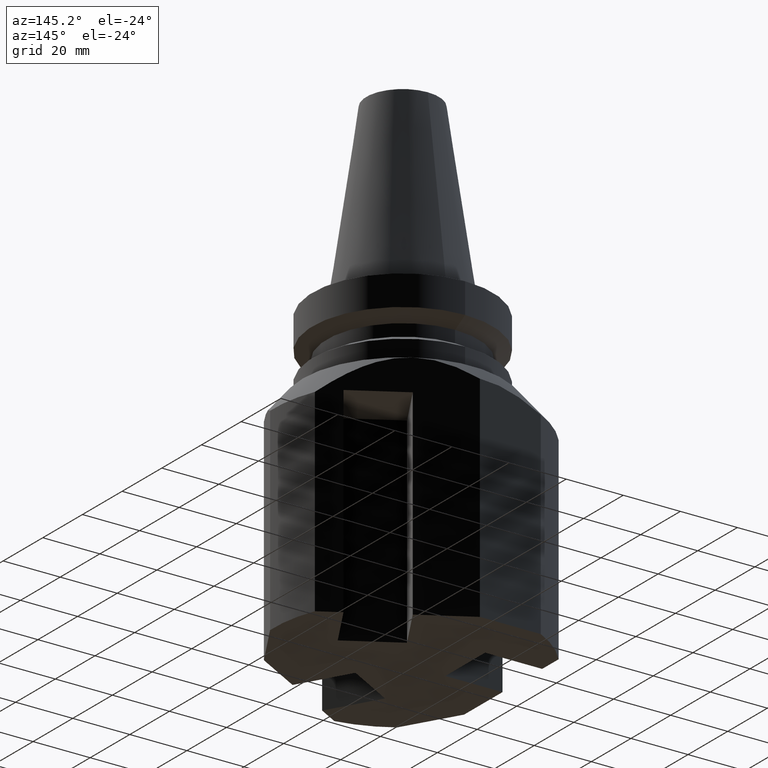
[diagram: clean part render]
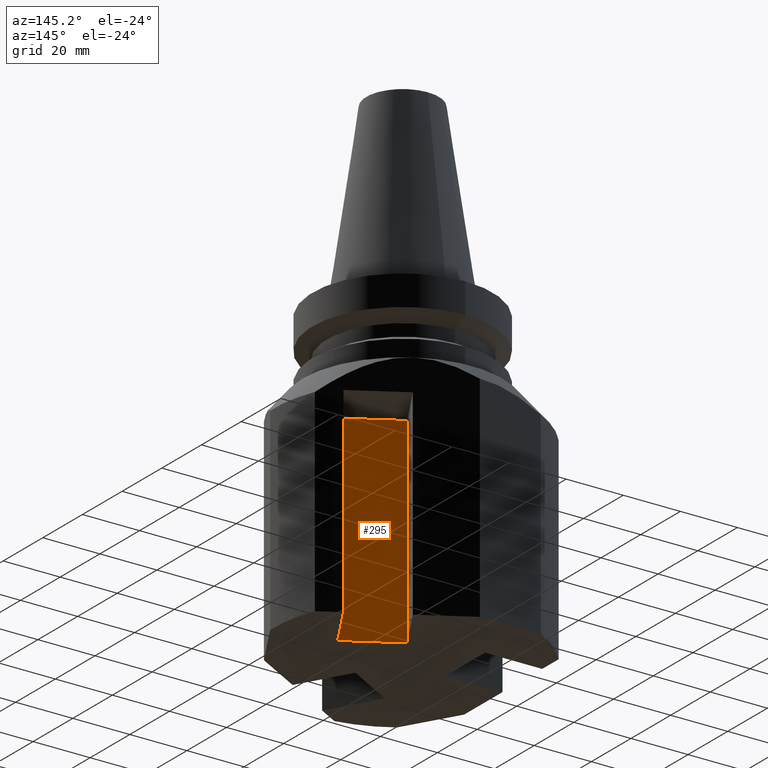
[diagram: same view with one face highlighted and labeled with its STEP entity id]
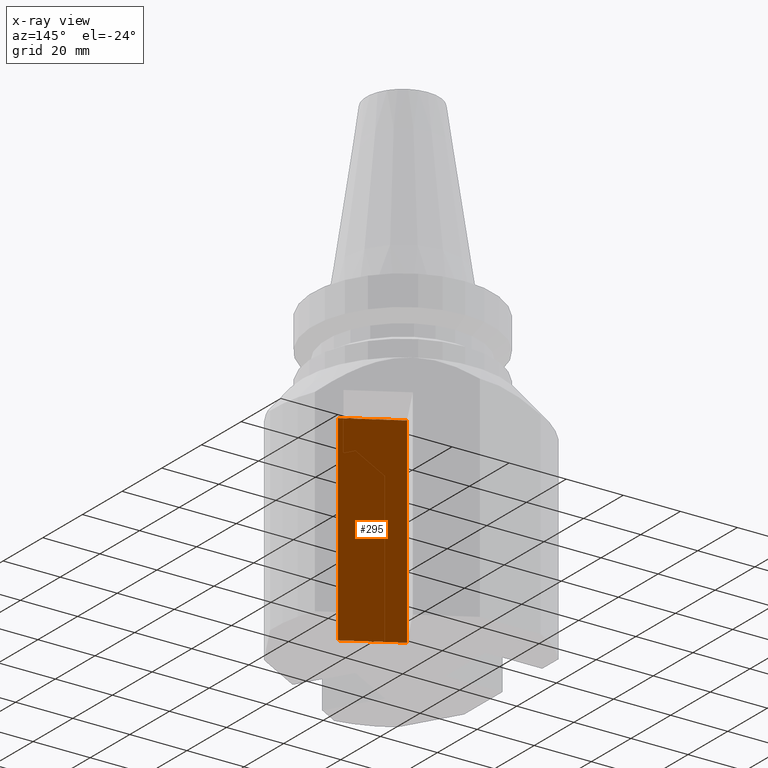
[diagram: x-ray of the same camera — body ghosted, the highlighted face saturated]
A machine part, auxiliary view. The second image highlights one B-rep face of the part: STEP entity #295.
The next image is the same camera in x-ray: the body ghosted, the highlighted face saturated — about 0% of this face is hidden behind the body in this view.
In plain terms, the highlighted planar face has unit normal (-0.5, -0.866, 0).
Its self-contained STEP definition (entity closure, byte-faithful):
#211=EDGE_CURVE('Unnamed[1]',#455,#479,#542,.T.);
#217=EDGE_CURVE('Unnamed[1]',#550,#455,#551,.T.);
#247=EDGE_CURVE('Unnamed[1]',#593,#479,#594,.T.);
#295=ADVANCED_FACE('Unnamed[1]',(#657),#658,.F.);
#402=EDGE_CURVE('Unnamed[1]',#593,#550,#787,.T.);
#455=VERTEX_POINT('',#853);
#479=VERTEX_POINT('',#886);
#542=LINE('',#1001,#1002);
#550=VERTEX_POINT('',#1013);
#551=LINE('',#1014,#1015);
#593=VERTEX_POINT('',#1094);
#594=LINE('',#1095,#1096);
#657=FACE_OUTER_BOUND('',#1194,.T.);
#658=PLANE('',#1195);
#787=LINE('',#1410,#1411);
#853=CARTESIAN_POINT('',(24.8205080756887,2.99038105676606,-39.9999999999998));
#886=CARTESIAN_POINT('',(7.50000000000011,12.9903810567661,-39.9999999999998));
#1001=CARTESIAN_POINT('',(24.8205080756887,2.99038105676606,-39.9999999999998));
#1002=VECTOR('',#1516,1.0);
#1013=CARTESIAN_POINT('',(24.8205080756887,2.99038105676605,-110.0));
#1014=CARTESIAN_POINT('',(24.8205080756887,2.99038105676603,-279.0));
#1015=VECTOR('',#1523,1.0);
#1094=CARTESIAN_POINT('',(7.50000000000011,12.9903810567661,-110.0));
#1095=CARTESIAN_POINT('',(7.5000000000001,12.9903810567661,-279.0));
#1096=VECTOR('',#1558,1.0);
#1194=EDGE_LOOP('',(#1610,#1611,#1612,#1613));
#1195=AXIS2_PLACEMENT_3D('',#1614,#1615,#1616);
#1410=CARTESIAN_POINT('',(6.95873412263449,13.3028810567663,-110.0));
#1411=VECTOR('',#1824,1.0);
#1516=DIRECTION('',(-0.866025403784436,0.500000000000005,-8.20357802112302E-018));
#1523=DIRECTION('',(6.12323399573677E-017,1.22464679914735E-016,1.0));
#1558=DIRECTION('',(6.12323399573677E-017,1.22464679914735E-016,1.0));
#1610=ORIENTED_EDGE('',*,*,#402,.F.);
#1611=ORIENTED_EDGE('',*,*,#247,.T.);
#1612=ORIENTED_EDGE('',*,*,#211,.F.);
#1613=ORIENTED_EDGE('',*,*,#217,.F.);
#1614=CARTESIAN_POINT('',(16.1602540378444,7.99038105676605,-279.0));
#1615=DIRECTION('',(-0.500000000000005,-0.866025403784436,1.36673693851174E-016));
#1616=DIRECTION('',(0.866025403784436,-0.500000000000005,8.20357802112303E-018));
#1824=DIRECTION('',(0.866025403784436,-0.500000000000005,2.21878097816368E-015));